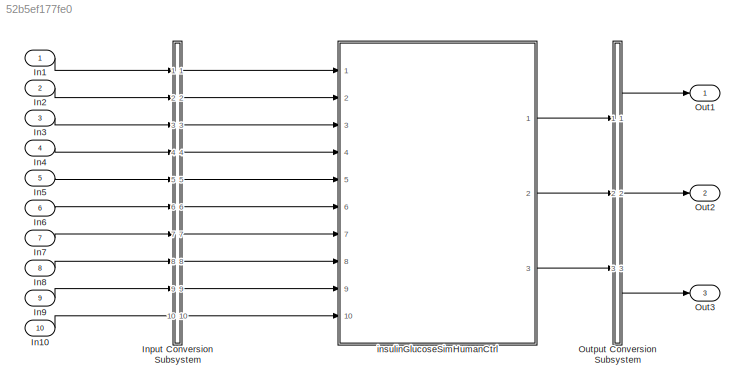
MODEL slx_52b5ef177fe0
KIND model
CONFIG AbsTol = auto
CONFIG EnableMultiTasking = on
CONFIG FixedStep = auto
CONFIG MaxStep = auto
CONFIG MinStep = auto
CONFIG RelTol = 1e-3
CONFIG SampleTimeConstraint = Unconstrained
CONFIG Solver = ode3
CONFIG SolverName = ode3
CONFIG StartTime = 0
CONFIG StopTime = 500
BLOCK [Inport] In1
  IconDisplay = Port number
  OutDataTypeStr = double
  PortDimensions = [1]
  SampleTime = 0
  SignalType = real
  VarSizeSig = No
BLOCK [Inport] In10
  IconDisplay = Port number
  OutDataTypeStr = double
  Port = 10
  PortDimensions = [1]
  SampleTime = 0
  SignalType = real
  VarSizeSig = No
BLOCK [Inport] In2
  IconDisplay = Port number
  OutDataTypeStr = double
  Port = 2
  PortDimensions = [1]
  SampleTime = 0
  SignalType = real
  VarSizeSig = No
BLOCK [Inport] In3
  IconDisplay = Port number
  OutDataTypeStr = double
  Port = 3
  PortDimensions = [1]
  SampleTime = 0
  SignalType = real
  VarSizeSig = No
BLOCK [Inport] In4
  IconDisplay = Port number
  OutDataTypeStr = double
  Port = 4
  PortDimensions = [1]
  SampleTime = 0
  SignalType = real
  VarSizeSig = No
BLOCK [Inport] In5
  IconDisplay = Port number
  OutDataTypeStr = double
  Port = 5
  PortDimensions = [1]
  SampleTime = 0
  SignalType = real
  VarSizeSig = No
BLOCK [Inport] In6
  IconDisplay = Port number
  OutDataTypeStr = double
  Port = 6
  PortDimensions = [1]
  SampleTime = 0
  SignalType = real
  VarSizeSig = No
BLOCK [Inport] In7
  IconDisplay = Port number
  OutDataTypeStr = double
  Port = 7
  PortDimensions = [1]
  SampleTime = 0
  SignalType = real
  VarSizeSig = No
BLOCK [Inport] In8
  IconDisplay = Port number
  OutDataTypeStr = double
  Port = 8
  PortDimensions = [1]
  SampleTime = 0
  SignalType = real
  VarSizeSig = No
BLOCK [Inport] In9
  IconDisplay = Port number
  OutDataTypeStr = double
  Port = 9
  PortDimensions = [1]
  SampleTime = 0
  SignalType = real
  VarSizeSig = No
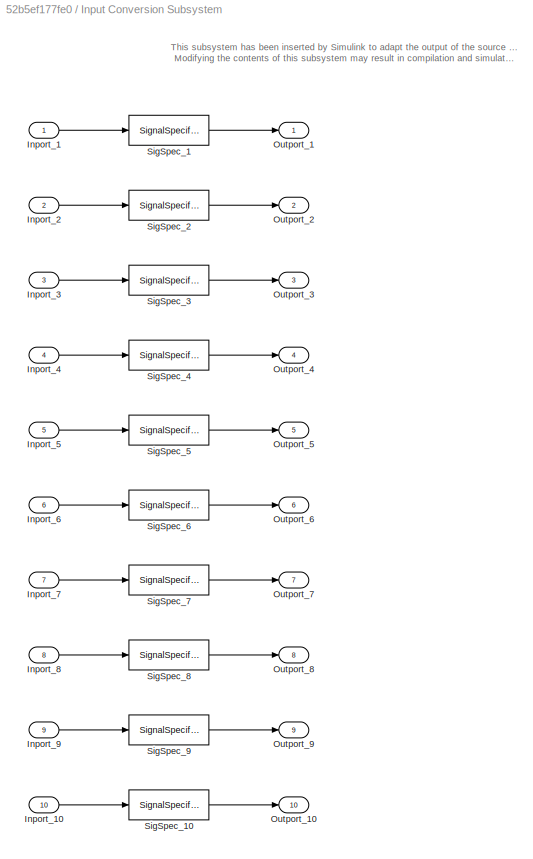
BLOCK [SubSystem] Input Conversion Subsystem
  AttributesFormatString = %<Description>
  Description = Signal spec.\nand routing
  Permissions = ReadOnly
  PermitHierarchicalResolution = ExplicitOnly
  Ports = [10, 10]
  RequestExecContextInheritance = off
  Tag = __SLT_ICS__
  UserDataPersistent = on
BLOCK [Inport] Input Conversion Subsystem/Inport_1
  IconDisplay = Port number
BLOCK [Inport] Input Conversion Subsystem/Inport_10
  IconDisplay = Port number
  Port = 10
BLOCK [Inport] Input Conversion Subsystem/Inport_2
  IconDisplay = Port number
  Port = 2
BLOCK [Inport] Input Conversion Subsystem/Inport_3
  IconDisplay = Port number
  Port = 3
BLOCK [Inport] Input Conversion Subsystem/Inport_4
  IconDisplay = Port number
  Port = 4
BLOCK [Inport] Input Conversion Subsystem/Inport_5
  IconDisplay = Port number
  Port = 5
BLOCK [Inport] Input Conversion Subsystem/Inport_6
  IconDisplay = Port number
  Port = 6
BLOCK [Inport] Input Conversion Subsystem/Inport_7
  IconDisplay = Port number
  Port = 7
BLOCK [Inport] Input Conversion Subsystem/Inport_8
  IconDisplay = Port number
  Port = 8
BLOCK [Inport] Input Conversion Subsystem/Inport_9
  IconDisplay = Port number
  Port = 9
BLOCK [Outport] Input Conversion Subsystem/Outport_1
  IconDisplay = Port number
BLOCK [Outport] Input Conversion Subsystem/Outport_10
  IconDisplay = Port number
  Port = 10
BLOCK [Outport] Input Conversion Subsystem/Outport_2
  IconDisplay = Port number
  Port = 2
BLOCK [Outport] Input Conversion Subsystem/Outport_3
  IconDisplay = Port number
  Port = 3
BLOCK [Outport] Input Conversion Subsystem/Outport_4
  IconDisplay = Port number
  Port = 4
BLOCK [Outport] Input Conversion Subsystem/Outport_5
  IconDisplay = Port number
  Port = 5
BLOCK [Outport] Input Conversion Subsystem/Outport_6
  IconDisplay = Port number
  Port = 6
BLOCK [Outport] Input Conversion Subsystem/Outport_7
  IconDisplay = Port number
  Port = 7
BLOCK [Outport] Input Conversion Subsystem/Outport_8
  IconDisplay = Port number
  Port = 8
BLOCK [Outport] Input Conversion Subsystem/Outport_9
  IconDisplay = Port number
  Port = 9
BLOCK [SignalSpecification] Input Conversion Subsystem/SigSpec_1
  Dimensions = [1]
  OutDataTypeStr = double
  SampleTime = [0, 0]
  SignalType = real
  VarSizeSig = No
BLOCK [SignalSpecification] Input Conversion Subsystem/SigSpec_10
  Dimensions = [1]
  OutDataTypeStr = double
  SampleTime = [0, 0]
  SignalType = real
  VarSizeSig = No
BLOCK [SignalSpecification] Input Conversion Subsystem/SigSpec_2
  Dimensions = [1]
  OutDataTypeStr = double
  SampleTime = [0, 0]
  SignalType = real
  VarSizeSig = No
BLOCK [SignalSpecification] Input Conversion Subsystem/SigSpec_3
  Dimensions = [1]
  OutDataTypeStr = double
  SampleTime = [0, 0]
  SignalType = real
  VarSizeSig = No
BLOCK [SignalSpecification] Input Conversion Subsystem/SigSpec_4
  Dimensions = [1]
  OutDataTypeStr = double
  SampleTime = [0, 0]
  SignalType = real
  VarSizeSig = No
BLOCK [SignalSpecification] Input Conversion Subsystem/SigSpec_5
  Dimensions = [1]
  OutDataTypeStr = double
  SampleTime = [0, 0]
  SignalType = real
  VarSizeSig = No
BLOCK [SignalSpecification] Input Conversion Subsystem/SigSpec_6
  Dimensions = [1]
  OutDataTypeStr = double
  SampleTime = [0, 0]
  SignalType = real
  VarSizeSig = No
BLOCK [SignalSpecification] Input Conversion Subsystem/SigSpec_7
  Dimensions = [1]
  OutDataTypeStr = double
  SampleTime = [0, 0]
  SignalType = real
  VarSizeSig = No
BLOCK [SignalSpecification] Input Conversion Subsystem/SigSpec_8
  Dimensions = [1]
  OutDataTypeStr = double
  SampleTime = [0, 0]
  SignalType = real
  VarSizeSig = No
BLOCK [SignalSpecification] Input Conversion Subsystem/SigSpec_9
  Dimensions = [1]
  OutDataTypeStr = double
  SampleTime = [0, 0]
  SignalType = real
  VarSizeSig = No
BLOCK [Outport] Out1
  IconDisplay = Port number
  OutDataTypeStr = double
  PortDimensions = [1]
  SignalType = real
  VarSizeSig = No
BLOCK [Outport] Out2
  IconDisplay = Port number
  OutDataTypeStr = double
  Port = 2
  PortDimensions = [1]
  SignalType = real
  VarSizeSig = No
BLOCK [Outport] Out3
  IconDisplay = Port number
  OutDataTypeStr = double
  Port = 3
  PortDimensions = [1]
  SignalType = real
  VarSizeSig = No
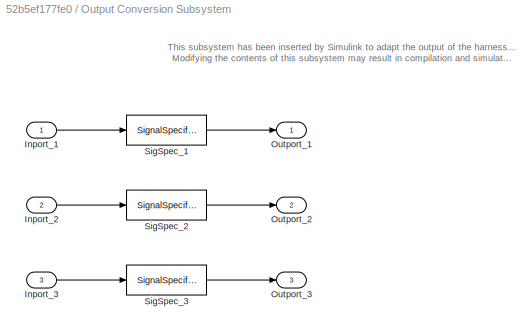
BLOCK [SubSystem] Output Conversion Subsystem
  AttributesFormatString = %<Description>
  Description = Signal spec.\nand routing
  Permissions = ReadOnly
  PermitHierarchicalResolution = ExplicitOnly
  Ports = [3, 3]
  RequestExecContextInheritance = off
  Tag = __SLT_OCS__
  UserDataPersistent = on
BLOCK [Inport] Output Conversion Subsystem/Inport_1
  IconDisplay = Port number
BLOCK [Inport] Output Conversion Subsystem/Inport_2
  IconDisplay = Port number
  Port = 2
BLOCK [Inport] Output Conversion Subsystem/Inport_3
  IconDisplay = Port number
  Port = 3
BLOCK [Outport] Output Conversion Subsystem/Outport_1
  IconDisplay = Port number
BLOCK [Outport] Output Conversion Subsystem/Outport_2
  IconDisplay = Port number
  Port = 2
BLOCK [Outport] Output Conversion Subsystem/Outport_3
  IconDisplay = Port number
  Port = 3
BLOCK [SignalSpecification] Output Conversion Subsystem/SigSpec_1
  Dimensions = [1]
  OutDataTypeStr = double
  SignalType = real
  VarSizeSig = No
BLOCK [SignalSpecification] Output Conversion Subsystem/SigSpec_2
  Dimensions = [1]
  OutDataTypeStr = double
  SignalType = real
  VarSizeSig = No
BLOCK [SignalSpecification] Output Conversion Subsystem/SigSpec_3
  Dimensions = [1]
  OutDataTypeStr = double
  SignalType = real
  VarSizeSig = No
BLOCK [ModelReference] insulinGlucoseSimHumanCtrl
  ModelNameDialog = insulinGlucoseSimHumanCtrl
  ModelReferenceVersion = 1.334
  Ports = [10, 3]
ANNOTATION Input Conversion Subsystem: This subsystem has been inserted by Simulink to adapt the output of the source blocks to the interface required by the harnessed component. Modifying the contents of this subsystem may result in compilation and simulation failure.
ANNOTATION Output Conversion Subsystem: This subsystem has been inserted by Simulink to adapt the output of the harnessed component to the interface required by the sink blocks. Modifying the contents of this subsystem may result in compilation and simulation failure.
LINE In10:1 -> Input Conversion Subsystem:10
LINE In1:1 -> Input Conversion Subsystem:1
LINE In2:1 -> Input Conversion Subsystem:2
LINE In3:1 -> Input Conversion Subsystem:3
LINE In4:1 -> Input Conversion Subsystem:4
LINE In5:1 -> Input Conversion Subsystem:5
LINE In6:1 -> Input Conversion Subsystem:6
LINE In7:1 -> Input Conversion Subsystem:7
LINE In8:1 -> Input Conversion Subsystem:8
LINE In9:1 -> Input Conversion Subsystem:9
LINE Input Conversion Subsystem/Inport_10:1 -> Input Conversion Subsystem/SigSpec_10:1
LINE Input Conversion Subsystem/Inport_1:1 -> Input Conversion Subsystem/SigSpec_1:1
LINE Input Conversion Subsystem/Inport_2:1 -> Input Conversion Subsystem/SigSpec_2:1
LINE Input Conversion Subsystem/Inport_3:1 -> Input Conversion Subsystem/SigSpec_3:1
LINE Input Conversion Subsystem/Inport_4:1 -> Input Conversion Subsystem/SigSpec_4:1
LINE Input Conversion Subsystem/Inport_5:1 -> Input Conversion Subsystem/SigSpec_5:1
LINE Input Conversion Subsystem/Inport_6:1 -> Input Conversion Subsystem/SigSpec_6:1
LINE Input Conversion Subsystem/Inport_7:1 -> Input Conversion Subsystem/SigSpec_7:1
LINE Input Conversion Subsystem/Inport_8:1 -> Input Conversion Subsystem/SigSpec_8:1
LINE Input Conversion Subsystem/Inport_9:1 -> Input Conversion Subsystem/SigSpec_9:1
LINE Input Conversion Subsystem/SigSpec_10:1 -> Input Conversion Subsystem/Outport_10:1
LINE Input Conversion Subsystem/SigSpec_1:1 -> Input Conversion Subsystem/Outport_1:1
LINE Input Conversion Subsystem/SigSpec_2:1 -> Input Conversion Subsystem/Outport_2:1
LINE Input Conversion Subsystem/SigSpec_3:1 -> Input Conversion Subsystem/Outport_3:1
LINE Input Conversion Subsystem/SigSpec_4:1 -> Input Conversion Subsystem/Outport_4:1
LINE Input Conversion Subsystem/SigSpec_5:1 -> Input Conversion Subsystem/Outport_5:1
LINE Input Conversion Subsystem/SigSpec_6:1 -> Input Conversion Subsystem/Outport_6:1
LINE Input Conversion Subsystem/SigSpec_7:1 -> Input Conversion Subsystem/Outport_7:1
LINE Input Conversion Subsystem/SigSpec_8:1 -> Input Conversion Subsystem/Outport_8:1
LINE Input Conversion Subsystem/SigSpec_9:1 -> Input Conversion Subsystem/Outport_9:1
LINE Input Conversion Subsystem:1 -> insulinGlucoseSimHumanCtrl:1
LINE Input Conversion Subsystem:10 -> insulinGlucoseSimHumanCtrl:10
LINE Input Conversion Subsystem:2 -> insulinGlucoseSimHumanCtrl:2
LINE Input Conversion Subsystem:3 -> insulinGlucoseSimHumanCtrl:3
LINE Input Conversion Subsystem:4 -> insulinGlucoseSimHumanCtrl:4
LINE Input Conversion Subsystem:5 -> insulinGlucoseSimHumanCtrl:5
LINE Input Conversion Subsystem:6 -> insulinGlucoseSimHumanCtrl:6
LINE Input Conversion Subsystem:7 -> insulinGlucoseSimHumanCtrl:7
LINE Input Conversion Subsystem:8 -> insulinGlucoseSimHumanCtrl:8
LINE Input Conversion Subsystem:9 -> insulinGlucoseSimHumanCtrl:9
LINE Output Conversion Subsystem/Inport_1:1 -> Output Conversion Subsystem/SigSpec_1:1
LINE Output Conversion Subsystem/Inport_2:1 -> Output Conversion Subsystem/SigSpec_2:1
LINE Output Conversion Subsystem/Inport_3:1 -> Output Conversion Subsystem/SigSpec_3:1
LINE Output Conversion Subsystem/SigSpec_1:1 -> Output Conversion Subsystem/Outport_1:1
LINE Output Conversion Subsystem/SigSpec_2:1 -> Output Conversion Subsystem/Outport_2:1
LINE Output Conversion Subsystem/SigSpec_3:1 -> Output Conversion Subsystem/Outport_3:1
LINE Output Conversion Subsystem:1 -> Out1:1
LINE Output Conversion Subsystem:2 -> Out2:1
LINE Output Conversion Subsystem:3 -> Out3:1
LINE insulinGlucoseSimHumanCtrl:1 -> Output Conversion Subsystem:1
LINE insulinGlucoseSimHumanCtrl:2 -> Output Conversion Subsystem:2
LINE insulinGlucoseSimHumanCtrl:3 -> Output Conversion Subsystem:3
